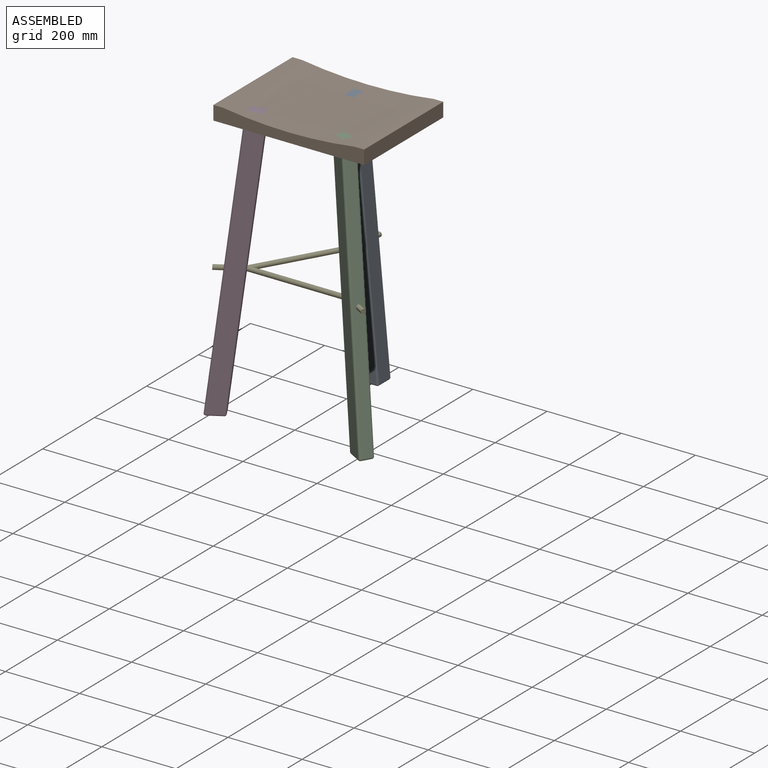
[diagram: assembled view]
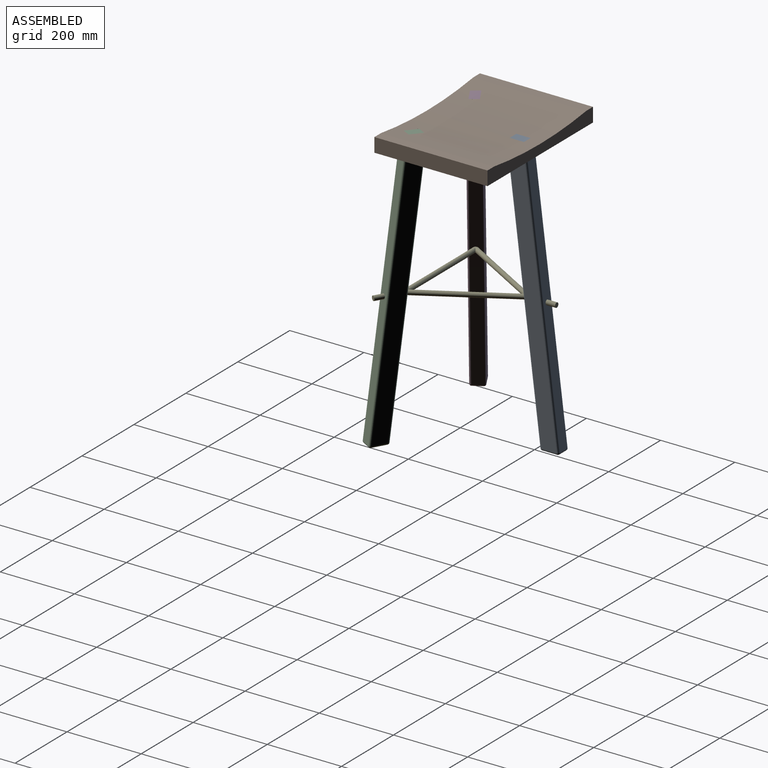
[diagram: assembled view, second angle]
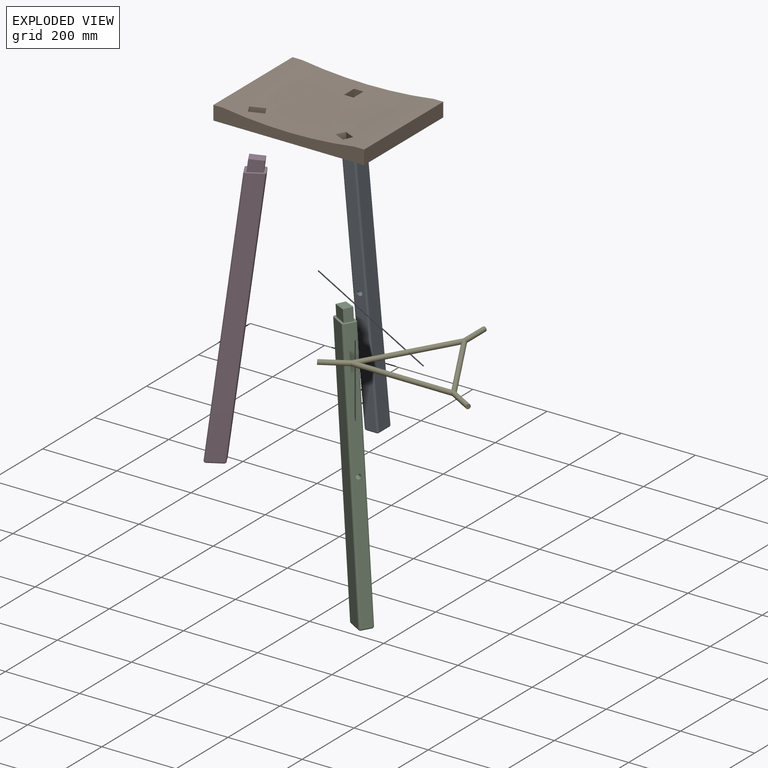
[diagram: exploded view]
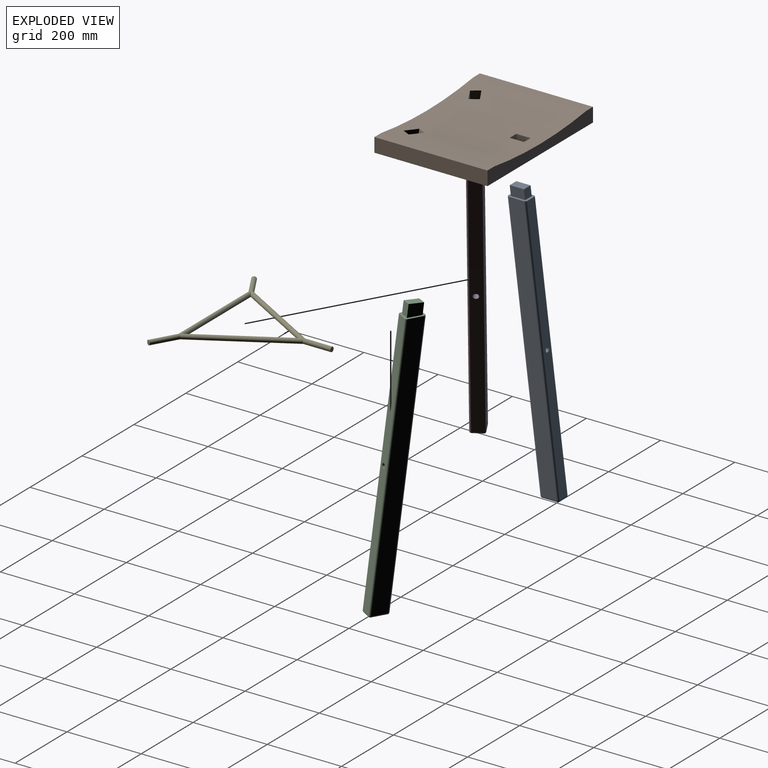
[diagram: exploded view, second angle]
ASSEMBLY  parts=5 mates=5
PART A: 26 faces, bbox 38.4x139.8x737 mm
  f0: plane 51.46x38.37mm, normal (0,0,1), area 952.9mm2, adj f1,f3,f4,f5,f6,f7,f8,f9
  f1: plane 706.79x88.38mm, normal (0,-0.99,-0.12), area 19747mm2, adj f0,f15,f18,f21,f23,f24,f25
  f2: plane 40.96x27.94mm, normal (0,0,-1), area 1144.3mm2, adj f11,f16,f17,f21
  f3: plane 705.82x88.52mm, normal (0,0.99,0.12), area 19737.1mm2, adj f0,f10,f11,f12,f25
  f4: plane 706.12x129.22mm, normal (1,0,0), area 28920mm2, adj f0,f10,f15,f16
  f5: plane 706.12x129.22mm, normal (-1,0,0), area 28920mm2, adj f0,f12,f17,f18
  f6: plane 41.58x25.46mm, normal (-1,0,0), area 977.7mm2, adj f0,f7,f8,f22
  f7: plane 25.48x25.42mm, normal (0,-0.99,-0.12), area 650.7mm2, adj f0,f6,f9,f22
  f8: plane 25.48x25.42mm, normal (0,0.99,0.12), area 650.7mm2, adj f0,f6,f9,f22
  f9: plane 41.58x25.46mm, normal (1,0,0), area 977.7mm2, adj f0,f7,f8,f22
  f10: cylinder r=5.08mm len=706.75mm, axis (0,0.12,-0.99), area 5675.9mm2, adj f0,f3,f4,f13
  f11: cylinder r=5.08mm len=27.94mm, axis (-1,0,0), area 240.6mm2, adj f2,f3,f13,f14
  f12: cylinder r=5.08mm len=706.75mm, axis (0,-0.12,0.99), area 5675.9mm2, adj f0,f3,f5,f14
  f13: sphere r=5.08mm, area 43.1mm2, adj f10,f11,f16
  f14: sphere r=5.08mm, area 43.1mm2, adj f11,f12,f17
  f15: cylinder r=5.08mm len=707.38mm, axis (0,-0.12,0.99), area 5681mm2, adj f0,f1,f4,f19
  f16: cylinder r=5.08mm len=40.96mm, axis (0,-1,0), area 326.8mm2, adj f2,f4,f13,f19
  f17: cylinder r=5.08mm len=40.96mm, axis (0,1,0), area 326.8mm2, adj f2,f5,f14,f20
  f18: cylinder r=5.08mm len=707.38mm, axis (0,0.12,-0.99), area 5681mm2, adj f0,f1,f5,f20
  f19: sphere r=5.08mm, area 37.3mm2, adj f15,f16,f21
  f20: sphere r=5.08mm, area 38mm2, adj f17,f18,f21
  f21: cylinder r=5.08mm len=27.94mm, axis (-1,0,0), area 205.3mm2, adj f1,f2,f19,f20
  f22: cylinder r=1250.95mm len=38.4mm, axis (0,1,0), area 975.3mm2, adj f6,f7,f8,f9
  f23: cylinder r=6.35mm len=12.54mm, axis (0.5,0.87,0), area 34.8mm2, adj f1,f24,f25
  f24: cylinder r=6.35mm len=12.54mm, axis (0.5,-0.87,0), area 34.8mm2, adj f1,f23,f25
  f25: cylinder r=6.35mm len=51.59mm, axis (0,1,0), area 1983.1mm2, adj f1,f3,f23,f24
PART B: 20 faces, bbox 406.4x304.8x38.1 mm
  f0: cylinder r=1250.95mm len=355.6mm, axis (0,1,0), area 105840.4mm2, adj f1,f2,f5,f6,f8,f9,f10,f11
  f1: plane 406.4x38.1mm, normal (0,1,0), area 12470mm2, adj f0,f2,f3,f4,f6,f7
  f2: plane 304.8x25.4mm, normal (0,0,1), area 7741.9mm2, adj f0,f1,f4,f5
  f3: plane 304.8x38.1mm, normal (1,0,0), area 11612.9mm2, adj f1,f5,f6,f7
  f4: plane 304.8x38.1mm, normal (-1,0,0), area 11612.9mm2, adj f1,f2,f5,f7
  f5: plane 406.4x38.1mm, normal (0,-1,0), area 12470mm2, adj f0,f2,f3,f4,f6,f7
  f6: plane 304.8x25.4mm, normal (0,0,1), area 7741.9mm2, adj f0,f1,f3,f5
  f7: plane 406.4x304.8mm, normal (0,0,-1), area 120944.9mm2, adj f1,f3,f4,f5,f8,f9,f10,f11
  f8: plane 36.4x31.94mm, normal (-0.5,0.87,0), area 1166.7mm2, adj f0,f7,f9,f10
  f9: plane 30.01x23.88mm, normal (-0.86,-0.5,0.12), area 754.8mm2, adj f0,f7,f8,f11
  f10: plane 33.28x24.08mm, normal (0.86,0.5,-0.12), area 834.3mm2, adj f0,f7,f8,f11
  f11: plane 36.51x33.29mm, normal (0.5,-0.87,0), area 1212.3mm2, adj f0,f7,f9,f10
  f12: plane 41.58x25.46mm, normal (1,0,0), area 977.7mm2, adj f0,f7,f13,f14
  f13: plane 25.48x25.42mm, normal (0,0.99,0.12), area 650.7mm2, adj f0,f7,f12,f15
  f14: plane 25.48x25.42mm, normal (0,-0.99,-0.12), area 650.7mm2, adj f0,f7,f12,f15
  f15: plane 41.58x25.46mm, normal (-1,0,0), area 977.7mm2, adj f0,f7,f13,f14
  f16: plane 36.51x33.29mm, normal (-0.5,-0.87,0), area 1212.3mm2, adj f0,f7,f17,f18
  f17: plane 30.01x23.88mm, normal (0.86,-0.5,0.12), area 754.8mm2, adj f0,f7,f16,f19
  f18: plane 33.28x24.08mm, normal (-0.86,0.5,-0.12), area 834.3mm2, adj f0,f7,f16,f19
  f19: plane 36.4x31.94mm, normal (0.5,0.87,0), area 1166.7mm2, adj f0,f7,f17,f18
PART C: 26 faces, bbox 136.4x99.3x744.8 mm
  f0: plane 59.93x55.12mm, normal (0,0,1), area 952.9mm2, adj f1,f3,f4,f5,f6,f7,f8,f9
  f1: plane 706.79x90.52mm, normal (-0.86,0.5,-0.12), area 19747mm2, adj f0,f15,f18,f21,f23,f24,f25
  f2: plane 49.44x44.68mm, normal (0,0,-1), area 1144.3mm2, adj f11,f16,f17,f21
  f3: plane 705.82x90.68mm, normal (0.86,-0.5,0.12), area 19737.1mm2, adj f0,f10,f11,f12,f25
  f4: plane 706.12x111.91mm, normal (-0.5,-0.87,0), area 28920mm2, adj f0,f10,f15,f16
  f5: plane 706.12x111.91mm, normal (0.5,0.87,0), area 28920mm2, adj f0,f12,f17,f18
  f6: plane 36.51x33.29mm, normal (0.5,0.87,0), area 1212.3mm2, adj f0,f7,f8,f22
  f7: plane 30.01x23.88mm, normal (-0.86,0.5,-0.12), area 754.8mm2, adj f0,f6,f9,f22
  f8: plane 33.28x24.08mm, normal (0.86,-0.5,0.12), area 834.3mm2, adj f0,f6,f9,f22
  f9: plane 36.4x31.94mm, normal (-0.5,-0.87,0), area 1166.7mm2, adj f0,f7,f8,f22
  f10: cylinder r=5.08mm len=706.75mm, axis (0.11,-0.06,-0.99), area 5675.9mm2, adj f0,f3,f4,f13
  f11: cylinder r=5.08mm len=26.74mm, axis (0.5,0.87,0), area 240.6mm2, adj f2,f3,f13,f14
  f12: cylinder r=5.08mm len=706.75mm, axis (-0.11,0.06,0.99), area 5675.9mm2, adj f0,f3,f5,f14
  f13: sphere r=5.08mm, area 43.1mm2, adj f10,f11,f16
  f14: sphere r=5.08mm, area 43.1mm2, adj f11,f12,f17
  f15: cylinder r=5.08mm len=707.38mm, axis (-0.11,0.06,0.99), area 5681mm2, adj f0,f1,f4,f19
  f16: cylinder r=5.08mm len=38.01mm, axis (-0.87,0.5,0), area 326.8mm2, adj f2,f4,f13,f19
  f17: cylinder r=5.08mm len=38.01mm, axis (0.87,-0.5,0), area 326.8mm2, adj f2,f5,f14,f20
  f18: cylinder r=5.08mm len=707.38mm, axis (0.11,-0.06,-0.99), area 5681mm2, adj f0,f1,f5,f20
  f19: sphere r=5.08mm, area 38mm2, adj f15,f16,f21
  f20: sphere r=5.08mm, area 38mm2, adj f17,f18,f21
  f21: cylinder r=5.08mm len=26.72mm, axis (0.5,0.87,0), area 205.3mm2, adj f1,f2,f19,f20
  f22: cylinder r=1250.95mm len=45.49mm, axis (0,1,0), area 969.8mm2, adj f6,f7,f8,f9
  f23: cylinder r=6.35mm len=12.54mm, axis (-1,0,0), area 34.8mm2, adj f1,f24,f25
  f24: cylinder r=6.35mm len=12.54mm, axis (0.5,-0.87,0), area 34.8mm2, adj f1,f23,f25
  f25: cylinder r=6.35mm len=51.03mm, axis (0.87,-0.5,0), area 1983.1mm2, adj f1,f3,f23,f24
PART D: 26 faces, bbox 136.4x99.3x744.8 mm
  f0: plane 59.93x55.12mm, normal (0,0,1), area 952.9mm2, adj f1,f3,f4,f5,f6,f7,f8,f9
  f1: plane 706.79x90.52mm, normal (0.86,0.5,-0.12), area 19747mm2, adj f0,f15,f18,f21,f23,f24,f25
  f2: plane 49.44x44.68mm, normal (0,0,-1), area 1144.3mm2, adj f11,f16,f17,f21
  f3: plane 705.82x90.68mm, normal (-0.86,-0.5,0.12), area 19737.1mm2, adj f0,f10,f11,f12,f25
  f4: plane 706.12x111.91mm, normal (-0.5,0.87,0), area 28920mm2, adj f0,f10,f15,f16
  f5: plane 706.12x111.91mm, normal (0.5,-0.87,0), area 28920mm2, adj f0,f12,f17,f18
  f6: plane 36.4x31.94mm, normal (0.5,-0.87,0), area 1166.7mm2, adj f0,f7,f8,f22
  f7: plane 30.01x23.88mm, normal (0.86,0.5,-0.12), area 754.8mm2, adj f0,f6,f9,f22
  f8: plane 33.28x24.08mm, normal (-0.86,-0.5,0.12), area 834.3mm2, adj f0,f6,f9,f22
  f9: plane 36.51x33.29mm, normal (-0.5,0.87,0), area 1212.3mm2, adj f0,f7,f8,f22
  f10: cylinder r=5.08mm len=706.75mm, axis (-0.11,-0.06,-0.99), area 5675.9mm2, adj f0,f3,f4,f13
  f11: cylinder r=5.08mm len=26.74mm, axis (0.5,-0.87,0), area 240.6mm2, adj f2,f3,f13,f14
  f12: cylinder r=5.08mm len=706.75mm, axis (0.11,0.06,0.99), area 5675.9mm2, adj f0,f3,f5,f14
  f13: sphere r=5.08mm, area 43.1mm2, adj f10,f11,f16
  f14: sphere r=5.08mm, area 43.1mm2, adj f11,f12,f17
  f15: cylinder r=5.08mm len=707.38mm, axis (0.11,0.06,0.99), area 5681mm2, adj f0,f1,f4,f19
  f16: cylinder r=5.08mm len=38.01mm, axis (0.87,0.5,0), area 326.8mm2, adj f2,f4,f13,f19
  f17: cylinder r=5.08mm len=38.01mm, axis (-0.87,-0.5,0), area 326.8mm2, adj f2,f5,f14,f20
  f18: cylinder r=5.08mm len=707.38mm, axis (-0.11,-0.06,-0.99), area 5681mm2, adj f0,f1,f5,f20
  f19: sphere r=5.08mm, area 37.3mm2, adj f15,f16,f21
  f20: sphere r=5.08mm, area 38mm2, adj f17,f18,f21
  f21: cylinder r=5.08mm len=26.72mm, axis (0.5,-0.87,0), area 205.3mm2, adj f1,f2,f19,f20
  f22: cylinder r=1250.95mm len=45.49mm, axis (0,1,0), area 969.8mm2, adj f6,f7,f8,f9
  f23: cylinder r=6.35mm len=12.54mm, axis (0.5,0.87,0), area 34.8mm2, adj f1,f24,f25
  f24: cylinder r=6.35mm len=12.54mm, axis (-1,0,0), area 34.8mm2, adj f1,f23,f25
  f25: cylinder r=6.35mm len=51.03mm, axis (-0.87,-0.5,0), area 1983.1mm2, adj f1,f3,f23,f24
PART E: 9 faces, bbox 413.3x357.9x12.7 mm
  f0: plane 12.7x12.7mm, normal (0,1,0), area 126.7mm2, adj f1
  f1: cylinder r=6.35mm len=76.2mm, axis (0,1,0), area 2997mm2, adj f0,f2,f8
  f2: cylinder r=6.35mm len=244.47mm, axis (0.5,0.87,0), area 10647.9mm2, adj f1,f4,f5,f8
  f3: plane 12.7x11mm, normal (-0.87,-0.5,0), area 126.7mm2, adj f4
  f4: cylinder r=6.35mm len=72.34mm, axis (-0.87,-0.5,0), area 2997mm2, adj f2,f3,f5
  f5: cylinder r=6.35mm len=274.96mm, axis (-1,0,0), area 10647.9mm2, adj f2,f4,f7,f8
  f6: plane 12.7x11mm, normal (0.87,-0.5,0), area 126.7mm2, adj f7
  f7: cylinder r=6.35mm len=72.34mm, axis (0.87,-0.5,0), area 2997mm2, adj f5,f6,f8
  f8: cylinder r=6.35mm len=244.47mm, axis (0.5,-0.87,0), area 10647.9mm2, adj f1,f2,f5,f7
PLACE A t=(-271.01,-226.4,-86.17)mm
PLACE B t=(-271.01,-226.4,-86.17)mm fixed
PLACE C t=(-271.01,-226.4,-86.17)mm
PLACE D t=(-271.01,-226.4,-86.17)mm
PLACE E t=(-271.01,-226.4,-86.17)mm
MATE fastened C.f0 <-> B.f7  axis (0,0,1) through (-166.82,-324.65,-86.17)mm
MATE slider A.f25 <-> E.f1  axis (0,1,0) through (-271.01,-79.95,-441.77)mm
MATE fastened B.f7 <-> D.f0  axis (0,0,-1) through (-375.19,-324.65,-86.17)mm
MATE slider C.f25 <-> E.f7  axis (0.87,-0.5,0) through (-111.18,-356.77,-441.77)mm
MATE fastened A.f0 <-> B.f7  axis (0,0,1) through (-271.01,-144.19,-86.17)mm
